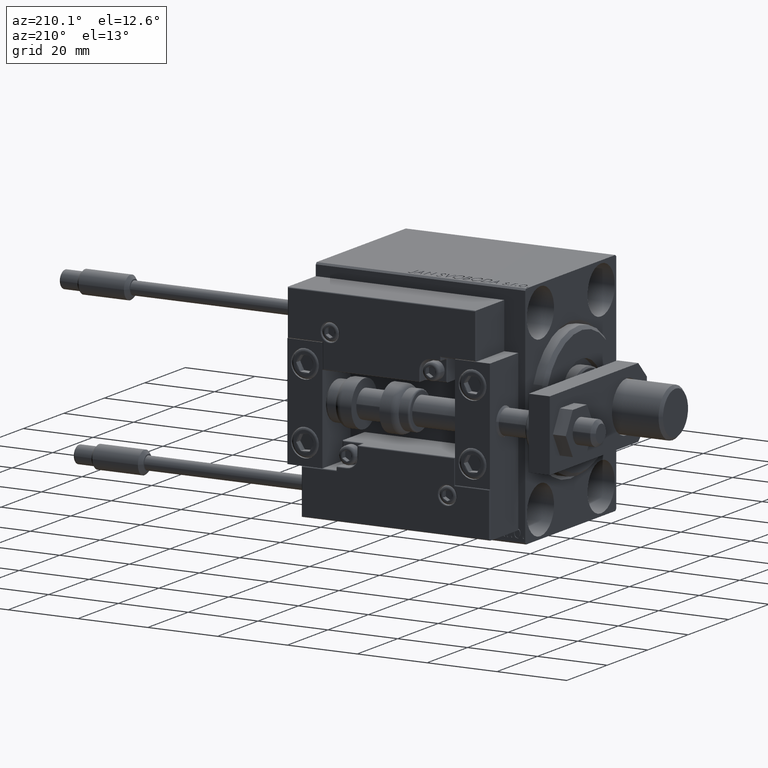
[diagram: clean part render]
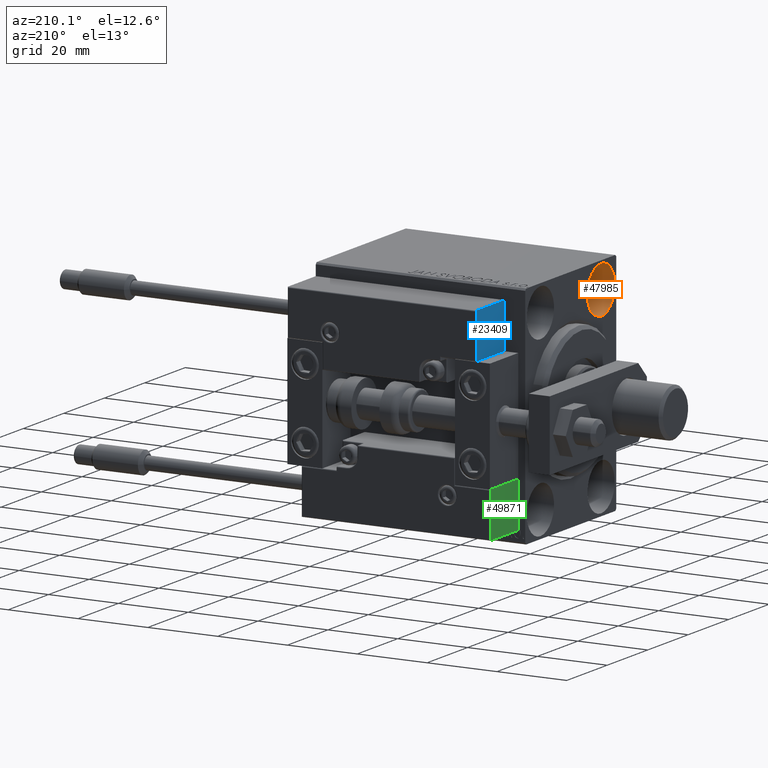
[diagram: same view with three faces highlighted in distinct colors, each labeled with its STEP entity id]
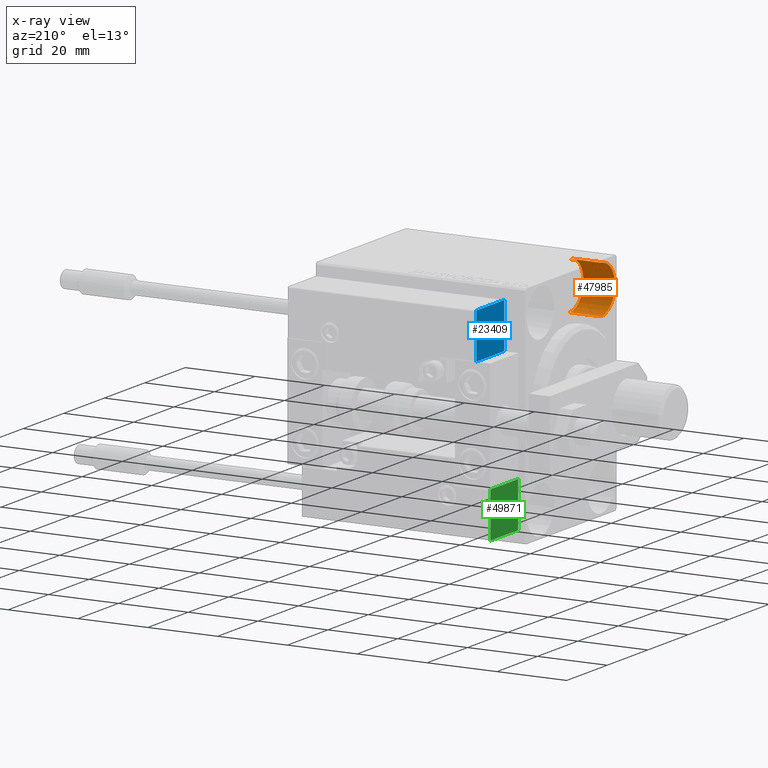
[diagram: x-ray of the same camera — body ghosted, the three highlighted faces saturated]
A machine part, auxiliary view with three faces highlighted in distinct colors.
The next image is the same camera in x-ray (body ghosted, the three faces saturated) — at least one of them is partly hidden behind the body in this view.
Their STEP definitions:

[orange] entity #47985 — the highlighted cylindrical surface (edge-blend (fillet) strip) has radius 6.75 mm, axis along (-1, -0, -0).
#475 = DIRECTION ( 'NONE',  ( -1.000000000000000000, -0.000000000000000000, -0.000000000000000000 ) ) ;
#5629 = DIRECTION ( 'NONE',  ( 0.000000000000000000, 0.000000000000000000, 1.000000000000000000 ) ) ;
#7131 = DIRECTION ( 'NONE',  ( 0.000000000000000000, 0.000000000000000000, 1.000000000000000000 ) ) ;
#7751 = CARTESIAN_POINT ( 'NONE',  ( 0.000000000000000000, -14.99999999999999645, 31.75000000000000000 ) ) ;
#9237 = AXIS2_PLACEMENT_3D ( 'NONE', #21646, #20882, #5629 ) ;
#9513 = ORIENTED_EDGE ( 'NONE', *, *, #14938, .T. ) ;
#10577 = EDGE_CURVE ( 'NONE', #39863, #30250, #32567, .T. ) ;
#11146 = DIRECTION ( 'NONE',  ( -1.000000000000000000, -0.000000000000000000, -0.000000000000000000 ) ) ;
#11997 = VECTOR ( 'NONE', #11146, 1000.000000000000000 ) ;
#12031 = CARTESIAN_POINT ( 'NONE',  ( 0.000000000000000000, -14.99999999999999645, 18.25000000000000355 ) ) ;
#12099 = LINE ( 'NONE', #23979, #43298 ) ;
#12122 = CARTESIAN_POINT ( 'NONE',  ( 0.000000000000000000, -14.99999999999999645, 25.00000000000000000 ) ) ;
#14368 = CARTESIAN_POINT ( 'NONE',  ( 9.000000000000000000, -14.99999999999999645, 25.00000000000000000 ) ) ;
#14938 = EDGE_CURVE ( 'NONE', #45144, #39863, #12099, .T. ) ;
#15137 = ORIENTED_EDGE ( 'NONE', *, *, #49574, .F. ) ;
#20137 = DIRECTION ( 'NONE',  ( 0.000000000000000000, 0.000000000000000000, 1.000000000000000000 ) ) ;
#20882 = DIRECTION ( 'NONE',  ( -1.000000000000000000, 0.000000000000000000, 0.000000000000000000 ) ) ;
#21646 = CARTESIAN_POINT ( 'NONE',  ( 9.000000000000000000, -14.99999999999999645, 25.00000000000000000 ) ) ;
#23979 = CARTESIAN_POINT ( 'NONE',  ( 9.000000000000000000, -14.99999999999999645, 18.25000000000000355 ) ) ;
#25291 = VERTEX_POINT ( 'NONE', #35826 ) ;
#30250 = VERTEX_POINT ( 'NONE', #7751 ) ;
#30630 = FACE_OUTER_BOUND ( 'NONE', #44716, .T. ) ;
#30760 = ORIENTED_EDGE ( 'NONE', *, *, #10577, .T. ) ;
#31508 = CIRCLE ( 'NONE', #9237, 6.749999999999999112 ) ;
#32567 = CIRCLE ( 'NONE', #39980, 6.749999999999999112 ) ;
#32964 = CARTESIAN_POINT ( 'NONE',  ( 9.000000000000000000, -14.99999999999999645, 18.25000000000000355 ) ) ;
#35826 = CARTESIAN_POINT ( 'NONE',  ( 9.000000000000000000, -14.99999999999999645, 31.75000000000000000 ) ) ;
#38393 = CYLINDRICAL_SURFACE ( 'NONE', #49890, 6.749999999999999112 ) ;
#39517 = DIRECTION ( 'NONE',  ( -1.000000000000000000, 0.000000000000000000, 0.000000000000000000 ) ) ;
#39863 = VERTEX_POINT ( 'NONE', #12031 ) ;
#39980 = AXIS2_PLACEMENT_3D ( 'NONE', #12122, #39517, #20137 ) ;
#41524 = ORIENTED_EDGE ( 'NONE', *, *, #42282, .F. ) ;
#42148 = LINE ( 'NONE', #45765, #11997 ) ;
#42282 = EDGE_CURVE ( 'NONE', #45144, #25291, #31508, .T. ) ;
#42528 = DIRECTION ( 'NONE',  ( -1.000000000000000000, -0.000000000000000000, -0.000000000000000000 ) ) ;
#43298 = VECTOR ( 'NONE', #475, 1000.000000000000000 ) ;
#44716 = EDGE_LOOP ( 'NONE', ( #41524, #9513, #30760, #15137 ) ) ;
#45144 = VERTEX_POINT ( 'NONE', #32964 ) ;
#45765 = CARTESIAN_POINT ( 'NONE',  ( 9.000000000000000000, -14.99999999999999645, 31.75000000000000000 ) ) ;
#47985 = ADVANCED_FACE ( 'NONE', ( #30630 ), #38393, .F. ) ;
#49574 = EDGE_CURVE ( 'NONE', #25291, #30250, #42148, .T. ) ;
#49890 = AXIS2_PLACEMENT_3D ( 'NONE', #14368, #42528, #7131 ) ;

[blue] entity #23409 — the highlighted planar face has unit normal (1, -0, -0).
#993 = CARTESIAN_POINT ( 'NONE',  ( 27.00000000000006395, 7.000000000000007994, 13.70000000000000107 ) ) ;
#1793 = LINE ( 'NONE', #40563, #13090 ) ;
#3742 = CARTESIAN_POINT ( 'NONE',  ( 27.00000000000006395, 7.000000000000007994, 14.00000000000000000 ) ) ;
#5304 = VERTEX_POINT ( 'NONE', #10402 ) ;
#7533 = VERTEX_POINT ( 'NONE', #46142 ) ;
#8295 = ORIENTED_EDGE ( 'NONE', *, *, #27350, .T. ) ;
#10402 = CARTESIAN_POINT ( 'NONE',  ( 27.00000000000006395, 20.00000000000001776, 13.70000000000000107 ) ) ;
#13090 = VECTOR ( 'NONE', #17045, 1000.000000000000000 ) ;
#13557 = VECTOR ( 'NONE', #36776, 1000.000000000000000 ) ;
#13629 = ORIENTED_EDGE ( 'NONE', *, *, #38469, .T. ) ;
#14705 = CARTESIAN_POINT ( 'NONE',  ( 27.00000000000006395, 7.000000000000007994, 14.00000000000000000 ) ) ;
#17045 = DIRECTION ( 'NONE',  ( 0.000000000000000000, 1.000000000000000000, 0.000000000000000000 ) ) ;
#18340 = EDGE_CURVE ( 'NONE', #7533, #41523, #26857, .T. ) ;
#19752 = PLANE ( 'NONE',  #37819 ) ;
#20748 = LINE ( 'NONE', #36512, #13557 ) ;
#23378 = FACE_OUTER_BOUND ( 'NONE', #26143, .T. ) ;
#23409 = ADVANCED_FACE ( 'NONE', ( #23378 ), #19752, .F. ) ;
#26143 = EDGE_LOOP ( 'NONE', ( #34354, #13629, #27614, #8295 ) ) ;
#26857 = LINE ( 'NONE', #14705, #50876 ) ;
#27350 = EDGE_CURVE ( 'NONE', #41523, #33385, #1793, .T. ) ;
#27614 = ORIENTED_EDGE ( 'NONE', *, *, #18340, .T. ) ;
#28271 = DIRECTION ( 'NONE',  ( 0.000000000000000000, 0.000000000000000000, 1.000000000000000000 ) ) ;
#33176 = VECTOR ( 'NONE', #43642, 1000.000000000000000 ) ;
#33385 = VERTEX_POINT ( 'NONE', #39384 ) ;
#34354 = ORIENTED_EDGE ( 'NONE', *, *, #47547, .F. ) ;
#36512 = CARTESIAN_POINT ( 'NONE',  ( 27.00000000000006395, 20.00000000000001776, 14.00000000000000000 ) ) ;
#36776 = DIRECTION ( 'NONE',  ( -0.000000000000000000, -0.000000000000000000, -1.000000000000000000 ) ) ;
#37819 = AXIS2_PLACEMENT_3D ( 'NONE', #3742, #39390, #28271 ) ;
#38469 = EDGE_CURVE ( 'NONE', #5304, #7533, #40277, .T. ) ;
#39384 = CARTESIAN_POINT ( 'NONE',  ( 27.00000000000006395, 20.00000000000001776, 0.000000000000000000 ) ) ;
#39390 = DIRECTION ( 'NONE',  ( -1.000000000000000000, 0.000000000000000000, 0.000000000000000000 ) ) ;
#40277 = LINE ( 'NONE', #993, #33176 ) ;
#40563 = CARTESIAN_POINT ( 'NONE',  ( 27.00000000000006395, 7.000000000000007994, 0.000000000000000000 ) ) ;
#41523 = VERTEX_POINT ( 'NONE', #43442 ) ;
#43442 = CARTESIAN_POINT ( 'NONE',  ( 27.00000000000006395, 7.000000000000007994, 0.000000000000000000 ) ) ;
#43642 = DIRECTION ( 'NONE',  ( -0.000000000000000000, -1.000000000000000000, -0.000000000000000000 ) ) ;
#46142 = CARTESIAN_POINT ( 'NONE',  ( 27.00000000000006395, 7.000000000000007994, 13.70000000000000107 ) ) ;
#46730 = DIRECTION ( 'NONE',  ( -0.000000000000000000, -0.000000000000000000, -1.000000000000000000 ) ) ;
#47547 = EDGE_CURVE ( 'NONE', #5304, #33385, #20748, .T. ) ;
#50876 = VECTOR ( 'NONE', #46730, 1000.000000000000000 ) ;

[green] entity #49871 — the highlighted planar face has unit normal (1, 0, -0).
#103 = CARTESIAN_POINT ( 'NONE',  ( -26.99999999999993605, 20.00000000000002132, 0.000000000000000000 ) ) ;
#112 = DIRECTION ( 'NONE',  ( -0.000000000000000000, -0.000000000000000000, -1.000000000000000000 ) ) ;
#755 = CARTESIAN_POINT ( 'NONE',  ( -26.99999999999993605, 20.00000000000002132, 13.70000000000000107 ) ) ;
#1792 = LINE ( 'NONE', #36687, #18662 ) ;
#2315 = VECTOR ( 'NONE', #20002, 1000.000000000000000 ) ;
#7210 = VERTEX_POINT ( 'NONE', #33052 ) ;
#9492 = FACE_OUTER_BOUND ( 'NONE', #50998, .T. ) ;
#11132 = ORIENTED_EDGE ( 'NONE', *, *, #26307, .T. ) ;
#12824 = ORIENTED_EDGE ( 'NONE', *, *, #34143, .T. ) ;
#17291 = VERTEX_POINT ( 'NONE', #25571 ) ;
#17314 = EDGE_CURVE ( 'NONE', #18755, #7210, #1792, .T. ) ;
#17352 = VECTOR ( 'NONE', #112, 1000.000000000000000 ) ;
#18662 = VECTOR ( 'NONE', #41326, 1000.000000000000000 ) ;
#18755 = VERTEX_POINT ( 'NONE', #35808 ) ;
#20002 = DIRECTION ( 'NONE',  ( -8.006416042969869188E-16, -1.000000000000000000, 0.000000000000000000 ) ) ;
#22315 = CARTESIAN_POINT ( 'NONE',  ( -26.99999999999993605, 20.00000000000002132, 13.70000000000000107 ) ) ;
#23541 = AXIS2_PLACEMENT_3D ( 'NONE', #41520, #29869, #41262 ) ;
#25252 = PLANE ( 'NONE',  #23541 ) ;
#25571 = CARTESIAN_POINT ( 'NONE',  ( -26.99999999999993605, 20.00000000000002132, 0.000000000000000000 ) ) ;
#26307 = EDGE_CURVE ( 'NONE', #17291, #7210, #36022, .T. ) ;
#29598 = VECTOR ( 'NONE', #40548, 1000.000000000000000 ) ;
#29869 = DIRECTION ( 'NONE',  ( 1.000000000000000000, -8.006416042969869188E-16, 0.000000000000000000 ) ) ;
#31361 = EDGE_CURVE ( 'NONE', #18755, #39189, #45184, .T. ) ;
#32406 = LINE ( 'NONE', #32666, #17352 ) ;
#32666 = CARTESIAN_POINT ( 'NONE',  ( -26.99999999999993605, 20.00000000000002132, 14.00000000000000000 ) ) ;
#33052 = CARTESIAN_POINT ( 'NONE',  ( -26.99999999999994671, 7.000000000000005329, 0.000000000000000000 ) ) ;
#34140 = ORIENTED_EDGE ( 'NONE', *, *, #31361, .T. ) ;
#34143 = EDGE_CURVE ( 'NONE', #39189, #17291, #32406, .T. ) ;
#35808 = CARTESIAN_POINT ( 'NONE',  ( -26.99999999999994671, 7.000000000000005329, 13.70000000000000107 ) ) ;
#36022 = LINE ( 'NONE', #103, #2315 ) ;
#36687 = CARTESIAN_POINT ( 'NONE',  ( -26.99999999999994671, 7.000000000000005329, 14.00000000000000000 ) ) ;
#39189 = VERTEX_POINT ( 'NONE', #22315 ) ;
#40548 = DIRECTION ( 'NONE',  ( 8.006416042969869188E-16, 1.000000000000000000, -0.000000000000000000 ) ) ;
#41262 = DIRECTION ( 'NONE',  ( 8.006416042969869188E-16, 1.000000000000000000, 0.000000000000000000 ) ) ;
#41326 = DIRECTION ( 'NONE',  ( -0.000000000000000000, -0.000000000000000000, -1.000000000000000000 ) ) ;
#41520 = CARTESIAN_POINT ( 'NONE',  ( -26.99999999999993605, 20.00000000000002132, 14.00000000000000000 ) ) ;
#44893 = ORIENTED_EDGE ( 'NONE', *, *, #17314, .F. ) ;
#45184 = LINE ( 'NONE', #755, #29598 ) ;
#49871 = ADVANCED_FACE ( 'NONE', ( #9492 ), #25252, .F. ) ;
#50998 = EDGE_LOOP ( 'NONE', ( #44893, #34140, #12824, #11132 ) ) ;